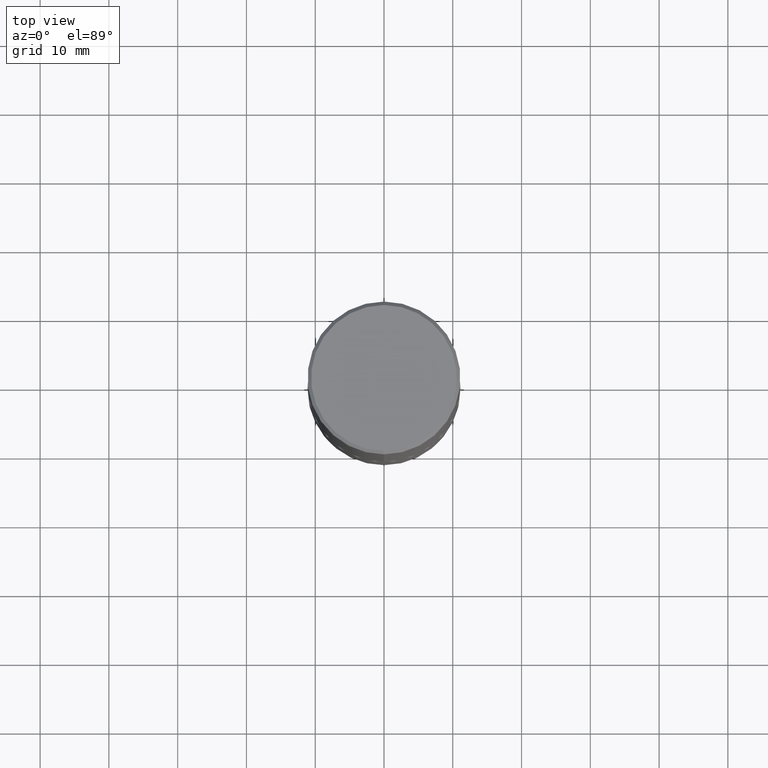
[diagram: clean part render]
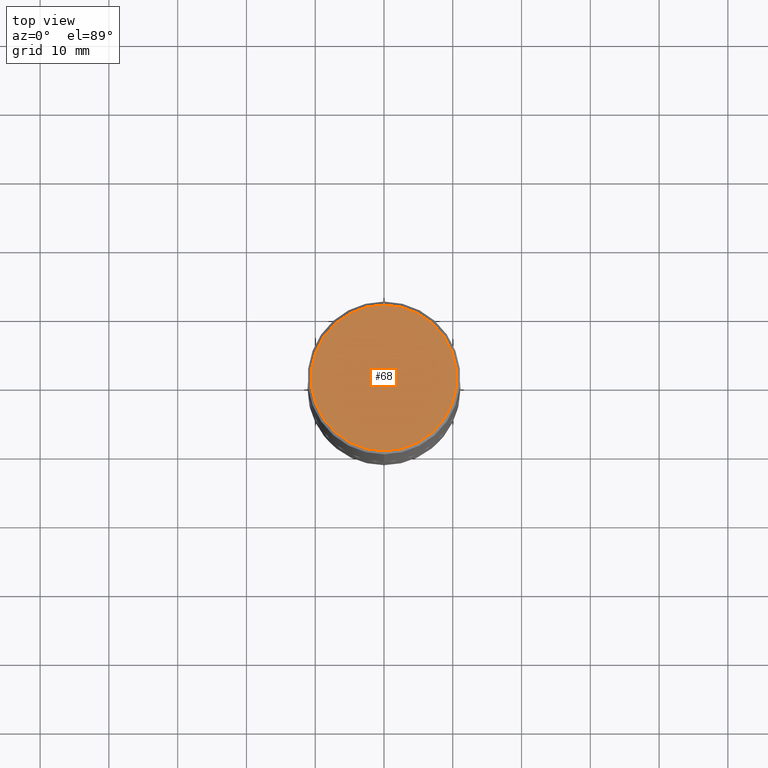
[diagram: same view with one face highlighted and labeled with its STEP entity id]
A machine part, top view. The second image highlights one B-rep face of the part: STEP entity #68.
In plain terms, the highlighted planar face has unit normal (0, -0, -1).
Its self-contained STEP definition (entity closure, byte-faithful):
#9 = ORIENTED_EDGE ( 'NONE', *, *, #354, .T. ) ;
#12 = PLANE ( 'NONE',  #399 ) ;
#32 = CARTESIAN_POINT ( 'NONE',  ( 2.985216544710877599E-15, 0.4174999999999997047, -1.265610396912493471E-15 ) ) ;
#36 = EDGE_LOOP ( 'NONE', ( #295, #9 ) ) ;
#44 = DIRECTION ( 'NONE',  ( -6.982962677686265922E-15, -1.000000000000000000, 3.489975585536062903E-15 ) ) ;
#68 = ADVANCED_FACE ( 'NONE', ( #297 ), #12, .F. ) ;
#108 = CARTESIAN_POINT ( 'NONE',  ( -4.683970946014791143E-45, 6.681712168135623282E-31, 1.914544100488114634E-16 ) ) ;
#128 = DIRECTION ( 'NONE',  ( -6.982962677686265922E-15, -1.000000000000000000, 3.489975585536062903E-15 ) ) ;
#141 = CARTESIAN_POINT ( 'NONE',  ( 2.915386917934013906E-15, 0.4174999999999997047, -1.361337601936899635E-15 ) ) ;
#235 = DIRECTION ( 'NONE',  ( 6.982962677686265922E-15, 1.000000000000000000, -3.489975585536062903E-15 ) ) ;
#237 = AXIS2_PLACEMENT_3D ( 'NONE', #286, #407, #128 ) ;
#245 = VERTEX_POINT ( 'NONE', #32 ) ;
#250 = EDGE_CURVE ( 'NONE', #245, #293, #349, .T. ) ;
#269 = DIRECTION ( 'NONE',  ( 2.446520268099652350E-29, -3.489975585536062903E-15, -1.000000000000000000 ) ) ;
#286 = CARTESIAN_POINT ( 'NONE',  ( -4.683970946014791143E-45, 6.681712168135623282E-31, 1.914544100488114634E-16 ) ) ;
#293 = VERTEX_POINT ( 'NONE', #316 ) ;
#295 = ORIENTED_EDGE ( 'NONE', *, *, #250, .T. ) ;
#297 = FACE_OUTER_BOUND ( 'NONE', #36, .T. ) ;
#301 = CIRCLE ( 'NONE', #379, 0.4174999999999997047 ) ;
#316 = CARTESIAN_POINT ( 'NONE',  ( -2.932862894047327755E-15, -0.4174999999999997047, 1.648519217010116546E-15 ) ) ;
#327 = DIRECTION ( 'NONE',  ( -2.446520268099652630E-29, 3.489975585536062903E-15, 1.000000000000000000 ) ) ;
#349 = CIRCLE ( 'NONE', #237, 0.4174999999999997047 ) ;
#354 = EDGE_CURVE ( 'NONE', #293, #245, #301, .T. ) ;
#379 = AXIS2_PLACEMENT_3D ( 'NONE', #108, #327, #44 ) ;
#399 = AXIS2_PLACEMENT_3D ( 'NONE', #141, #269, #235 ) ;
#407 = DIRECTION ( 'NONE',  ( -2.446520268099652630E-29, 3.489975585536062903E-15, 1.000000000000000000 ) ) ;